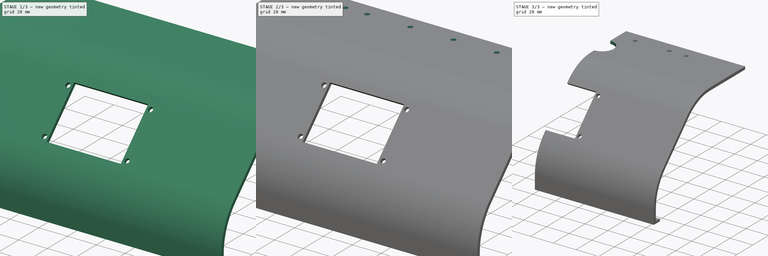
[diagram: build sequence overview — one tinted view per stage of 3, left to right]
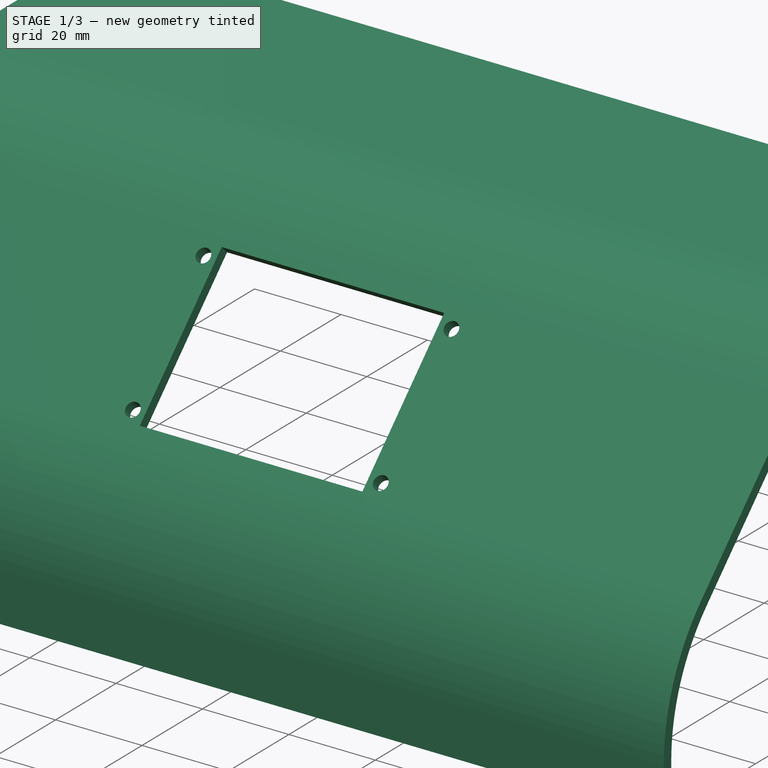
[diagram: stage 1 of 3 — iso view after this stage's code; geometry added in this stage tinted green]
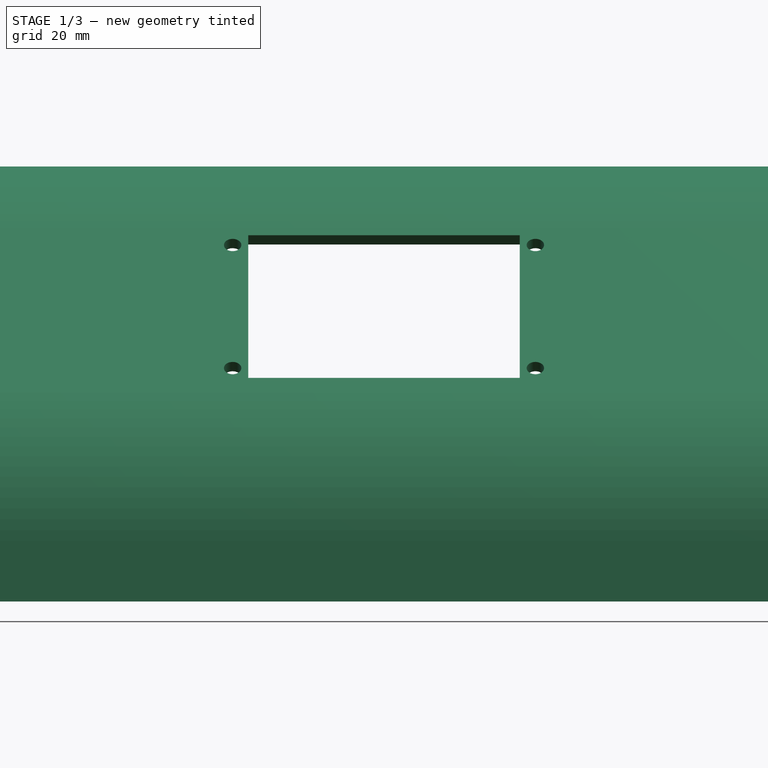
[diagram: stage 1 of 3 — front view after this stage's code; geometry added in this stage tinted green]
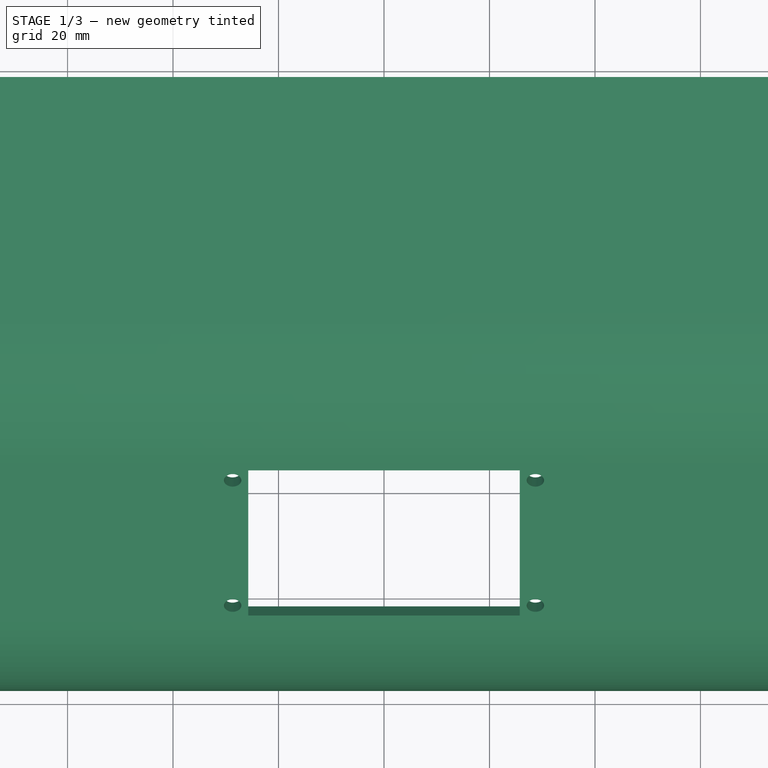
[diagram: stage 1 of 3 — top view after this stage's code; geometry added in this stage tinted green]
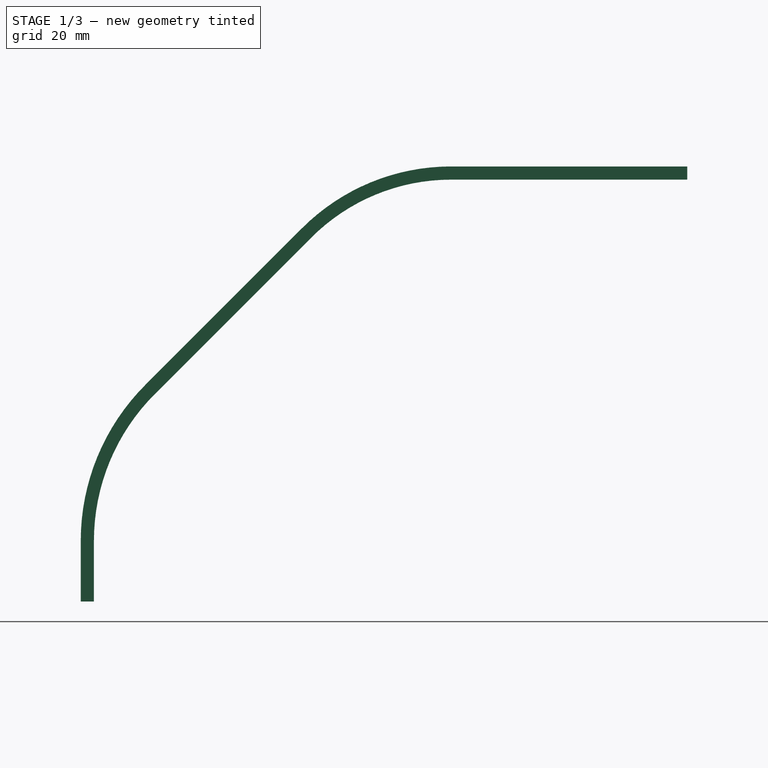
[diagram: stage 1 of 3 — right view after this stage's code; geometry added in this stage tinted green]
FCSTD DOCUMENT  (FreeCAD 1.0R39109 (Git))
Label: screen_support_h2
License: All rights reserved
LicenseURL: https://en.wikipedia.org/wiki/All_rights_reserved
objects: Sketcher::SketchObject×7, PartDesign::Pocket×4, PartDesign::Pad×2, PartDesign::Fillet×1, PartDesign::Body×1
note: 36 computed .brp shape members not serialized (recipe doc carries the construction recipe); baked Part::Feature solids carry a one-line shape summary decoded from their .brp

FEATURE [Sketcher::SketchObject] Sketch
  ArcFitTolerance = 1e-06
  AttachmentSupport = -> [YZ_Plane]
  FullyConstrained = true
  MakeInternals = false
  MapMode = 5
  Placement = pos=(0,0,0) rot=(0.57735,0.57735,0.57735;2.0944rad)
  sketch-geometry (14):
    g0: LineSegment StartX=12.7368 StartY=82.5 StartZ=0 EndX=57.5008 EndY=82.5 EndZ=0
    g1: LineSegment StartX=-15.5475 StartY=70.7843 StartZ=0 EndX=-45.246 EndY=41.0858 EndZ=0
    g2: ArcOfCircle CenterX=-15.6602 CenterY=11.5 CenterZ=0 NormalX=0 NormalY=0 NormalZ=1 AngleXU=0 Radius=41.8406 StartAngle=2.35619 EndAngle=3.14159
    g3: LineSegment StartX=-57.5008 StartY=11.5 StartZ=0 EndX=-57.5008 EndY=0 EndZ=0
    g4: ArcOfCircle CenterX=12.7368 CenterY=42.5 CenterZ=0 NormalX=0 NormalY=0 NormalZ=1 AngleXU=0 Radius=40 StartAngle=1.5708 EndAngle=2.35619
    g5: LineSegment [constr] StartX=-57.5008 StartY=0 StartZ=0 EndX=57.5008 EndY=0 EndZ=0
    g6: GeomPoint [constr] X=0 Y=0 Z=0
    g7: LineSegment StartX=57.5008 StartY=82.5 StartZ=0 EndX=57.5008 EndY=80 EndZ=0
    g8: LineSegment StartX=57.5008 StartY=80 StartZ=0 EndX=12.7368 EndY=80 EndZ=0
    g9: ArcOfCircle CenterX=12.7368 CenterY=42.5 CenterZ=0 NormalX=0 NormalY=0 NormalZ=1 AngleXU=0 Radius=37.5 StartAngle=1.5708 EndAngle=2.35619
    g10: LineSegment StartX=-13.7797 StartY=69.0165 StartZ=0 EndX=-43.4782 EndY=39.318 EndZ=0
    g11: ArcOfCircle CenterX=-15.6602 CenterY=11.5 CenterZ=0 NormalX=0 NormalY=0 NormalZ=1 AngleXU=0 Radius=39.3406 StartAngle=2.35619 EndAngle=3.14159
    g12: LineSegment StartX=-55.0008 StartY=11.5 StartZ=0 EndX=-55.0008 EndY=0 EndZ=0
    g13: LineSegment StartX=-55.0008 StartY=0 StartZ=0 EndX=-57.5008 EndY=0 EndZ=0
  constraints (34):
    c: Tangent(g1,g2) = -1.5708
    c: Tangent(g2,g3) = -1.5708
    c: Vertical(g3)
    c: Horizontal(g0)
    c: Tangent(g4,g1) = -1.5708
    c: Tangent(g4,g0) = 1.5708
    c: Distance(g1) = 42
    c: Angle(g1) = -2.35619
    c: DistanceX(g0,g0) = 44.764
    c: Radius(g4) = 40
    c: Radius(g2) = 41.8406
    c: PointOnObject(g3,g-1)
    c: DistanceY(g-1,g0) = 82.5
    c: Coincident(g5,g3)
    c: Symmetric(g5,g5,g6)
    c: Coincident(g6,g-1)
    c: Vertical(g5,g0)
    c: Coincident(g0,g7)
    c: Coincident(g7,g8)
    c: Horizontal(g8)
    c: Tangent(g8,g9) = -1.5708
    c: Tangent(g9,g10) = -1.5708
    c: Tangent(g10,g11) = -1.5708
    c: Tangent(g11,g12) = -1.5708
    c: Coincident(g12,g13)
    c: Coincident(g13,g3)
    c: Horizontal(g13)
    c: DistanceY(g7,g7) = 2.5
    c: Vertical(g7)
    c: Vertical(g8,g0)
    c: Horizontal(g11,g2)
    c: DistanceX(g13,g13) = 2.5
    c: Parallel(g10,g1)
    c: Coincident(g11,g2)
FEATURE [PartDesign::Pad] Pad  label="BasePad"
  Direction = (1,0,0)
  Length = 105
  Length2 = 105
  Placement = pos=(0,0,0) rot=(1,1,1;2.0944rad)
  Profile = -> Sketch
  ReferenceAxis = -> Sketch [N_Axis]
  Refine = true
  Suppressed = false
  Type = 4
FEATURE [Sketcher::SketchObject] Sketch001
  ArcFitTolerance = 1e-06
  AttachmentSupport = -> [Pad]
  ExternalGeometry = -> [Pad]
  FullyConstrained = true
  MakeInternals = false
  MapMode = 5
  Placement = pos=(-9.8e-15,-43.1659,43.1659) rot=(0.357407,0.357407,-0.862856;1.71777rad)
  sketch-geometry (18):
    g0: LineSegment StartX=-37.1833 StartY=25.75 StartZ=0 EndX=-37.1833 EndY=-25.75 EndZ=0
    g1: LineSegment StartX=-37.1833 StartY=-25.75 StartZ=0 EndX=1.06669 EndY=-25.75 EndZ=0
    g2: LineSegment StartX=1.06669 StartY=-25.75 StartZ=0 EndX=1.06669 EndY=25.75 EndZ=0
    g3: LineSegment StartX=1.06669 StartY=25.75 StartZ=0 EndX=-37.1833 EndY=25.75 EndZ=0
    g4: GeomPoint [constr] X=-18.0583 Y=-7.9e-15 Z=0
    g5: LineSegment [constr] StartX=-39.0583 StartY=-1.8e-14 StartZ=0 EndX=2.94169 EndY=2.2e-15 EndZ=0
    g6: GeomPoint [constr] X=-18.0583 Y=-7.9e-15 Z=0
    g7: Circle CenterX=-34.5583 CenterY=28.7 CenterZ=0 NormalX=0 NormalY=0 NormalZ=1 AngleXU=0 Radius=1.65
    g8: Circle CenterX=-1.55831 CenterY=28.7 CenterZ=0 NormalX=0 NormalY=0 NormalZ=1 AngleXU=0 Radius=1.65
    g9: GeomPoint [constr] X=-18.0583 Y=25.75 Z=0
    g10: LineSegment [constr] StartX=-34.5583 StartY=28.7 StartZ=0 EndX=-1.55831 EndY=28.7 EndZ=0
    g11: GeomPoint [constr] X=-18.0583 Y=28.7 Z=0
    g12: Circle CenterX=-34.5583 CenterY=-28.7 CenterZ=0 NormalX=0 NormalY=0 NormalZ=1 AngleXU=0 Radius=1.65
    g13: Circle CenterX=-1.55831 CenterY=-28.7 CenterZ=0 NormalX=0 NormalY=0 NormalZ=1 AngleXU=0 Radius=1.65
    g14: LineSegment [constr] StartX=-34.5583 StartY=-28.7 StartZ=0 EndX=-1.55831 EndY=-28.7 EndZ=0
    g15: GeomPoint [constr] X=-18.0583 Y=-28.7 Z=0
    g16: LineSegment [constr] StartX=-18.0583 StartY=28.7 StartZ=0 EndX=-18.0583 EndY=-28.7 EndZ=0
    g17: GeomPoint [constr] X=-18.0583 Y=-7.9e-15 Z=0
  constraints (35):
    c: Coincident(g0,g1)
    c: Coincident(g1,g2)
    c: Coincident(g2,g3)
    c: Coincident(g3,g0)
    c: Vertical(g0)
    c: Vertical(g2)
    c: Horizontal(g1)
    c: Horizontal(g3)
    c: Symmetric(g2,g0,g4)
    c: DistanceX(g3,g3) = 38.25
    c: DistanceY(g0,g0) = 51.5
    c: Symmetric(g-3,g-3,g5)
    c: Symmetric(g-4,g-4,g5)
    c: Symmetric(g5,g5,g6)
    c: Coincident(g6,g4)
    c: Equal(g7,g8)
    c: Radius(g8) = 1.65
    c: DistanceX(g7,g8) = 33
    c: Symmetric(g3,g3,g9)
    c: Coincident(g10,g7)
    c: Coincident(g10,g8)
    c: Horizontal(g10)
    c: Symmetric(g10,g10,g11)
    c: Vertical(g11,g9)
    c: Equal(g12,g13)
    c: Radius(g13) = 1.65
    c: Coincident(g14,g12)
    c: Coincident(g14,g13)
    c: Symmetric(g14,g14,g15)
    c: DistanceY(g12,g7) = 57.4
    c: Coincident(g16,g11)
    c: Coincident(g16,g15)
    c: Symmetric(g16,g16,g17)
    c: Coincident(g17,g4)
    c: Symmetric(g13,g7,g4)
FEATURE [PartDesign::Pocket] Pocket  label="ScreenPocket"
  BaseFeature = -> Pad
  Direction = (1e-16,0.707107,-0.707107)
  Length = 5
  Length2 = 5
  Placement = pos=(0,0,0) rot=(1,1,1;2.0944rad)
  Profile = -> Sketch001
  ReferenceAxis = -> Sketch001 [N_Axis]
  Refine = true
  Suppressed = false
  Type = 1
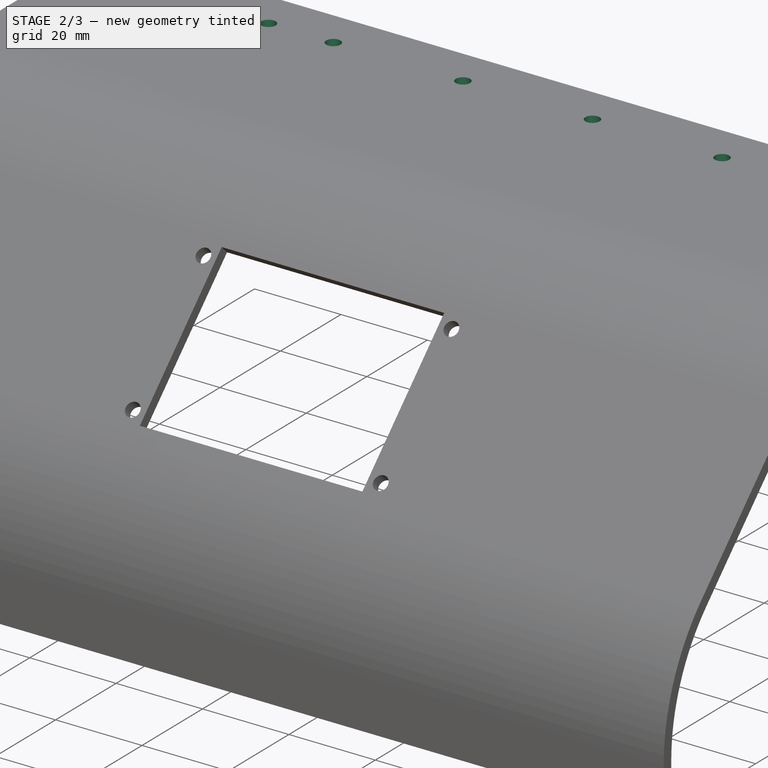
[diagram: stage 2 of 3 — iso view after this stage's code; geometry added in this stage tinted green]
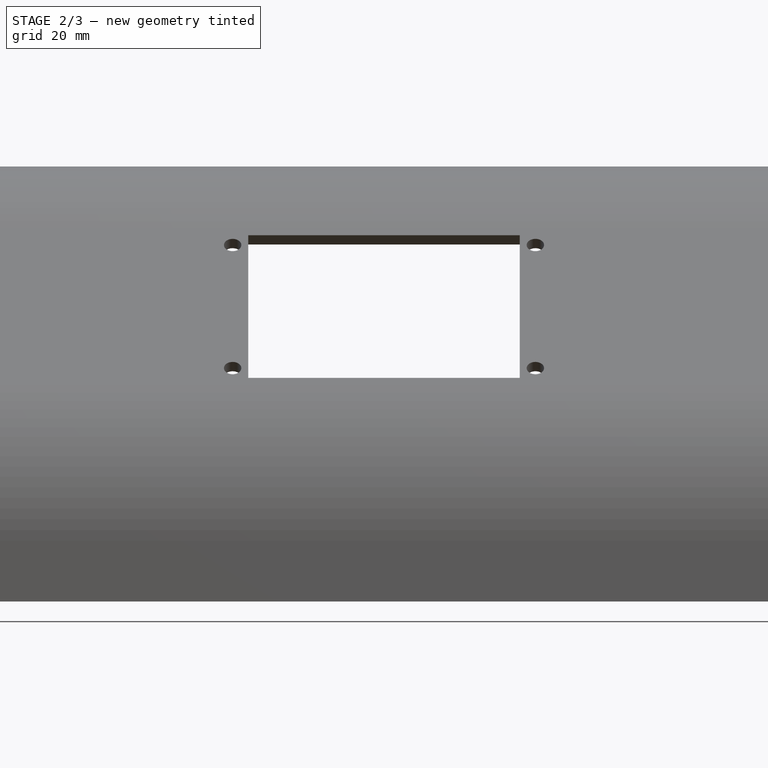
[diagram: stage 2 of 3 — front view after this stage's code; geometry added in this stage tinted green]
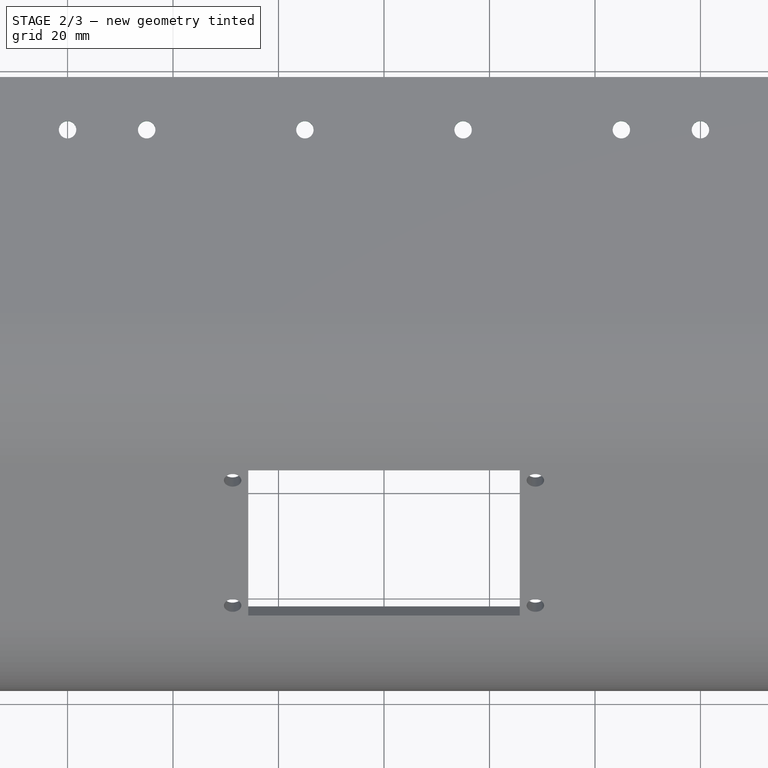
[diagram: stage 2 of 3 — top view after this stage's code; geometry added in this stage tinted green]
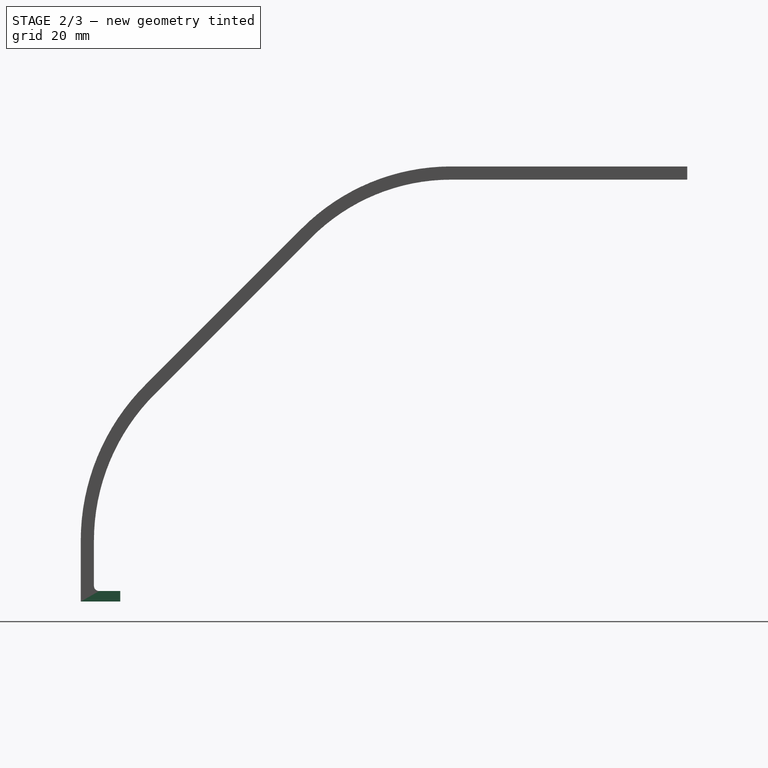
[diagram: stage 2 of 3 — right view after this stage's code; geometry added in this stage tinted green]
FEATURE [Sketcher::SketchObject] Sketch002
  ArcFitTolerance = 1e-06
  AttachmentSupport = -> [Pocket]
  FullyConstrained = true
  MakeInternals = false
  MapMode = 5
  Placement = pos=(0,1.82e-14,82.5) rot=(0,0,-1;1.5708rad)
FEATURE [Sketcher::SketchObject] Sketch003
  ArcFitTolerance = 1e-06
  AttachmentSupport = -> [Pocket]
  ExternalGeometry = -> [Pocket]
  FullyConstrained = true
  MakeInternals = false
  MapMode = 5
  Placement = pos=(0,1.82e-14,82.5) rot=(0,0,-1;1.5708rad)
  sketch-geometry (11):
    g0: Circle CenterX=-47.5008 CenterY=15 CenterZ=0 NormalX=0 NormalY=0 NormalZ=1 AngleXU=0 Radius=1.65
    g1: Circle CenterX=-47.5008 CenterY=45 CenterZ=0 NormalX=0 NormalY=0 NormalZ=1 AngleXU=0 Radius=1.65
    g2: Circle CenterX=-47.5008 CenterY=-15 CenterZ=0 NormalX=0 NormalY=0 NormalZ=1 AngleXU=0 Radius=1.65
    g3: Circle CenterX=-47.5008 CenterY=-45 CenterZ=0 NormalX=0 NormalY=0 NormalZ=1 AngleXU=0 Radius=1.65
    g4: LineSegment [constr] StartX=-47.5008 StartY=-45 StartZ=0 EndX=-47.5008 EndY=-15 EndZ=0
    g5: LineSegment [constr] StartX=-47.5008 StartY=-15 StartZ=0 EndX=-47.5008 EndY=15 EndZ=0
    g6: LineSegment [constr] StartX=-47.5008 StartY=15 StartZ=0 EndX=-47.5008 EndY=45 EndZ=0
    g7: GeomPoint [constr] X=-47.5008 Y=0 Z=0
    g8: Circle CenterX=-47.5008 CenterY=60 CenterZ=0 NormalX=0 NormalY=0 NormalZ=1 AngleXU=0 Radius=1.65
    g9: Circle CenterX=-47.5008 CenterY=-60 CenterZ=0 NormalX=0 NormalY=0 NormalZ=1 AngleXU=0 Radius=1.65
    g10: LineSegment [constr] StartX=-47.5008 StartY=-45 StartZ=0 EndX=-47.5008 EndY=-60 EndZ=0
  constraints (26):
    c: Coincident(g4,g3)
    c: Coincident(g4,g2)
    c: Vertical(g4)
    c: Coincident(g4,g5)
    c: Coincident(g5,g0)
    c: Coincident(g5,g6)
    c: Coincident(g6,g1)
    c: Vertical(g6)
    c: Symmetric(g5,g5,g7)
    c: PointOnObject(g7,g-1)
    c: Equal(g4,g6)
    c: Vertical(g5)
    c: DistanceY(g5,g5) = 30
    c: DistanceY(g6,g6) = 30
    c: Equal(g1,g0)
    c: Equal(g0,g2)
    c: Equal(g2,g3)
    c: Radius(g3) = 1.65
    c: DistanceX(g-3,g7) = 10
    c: Vertical(g9,g3)
    c: Coincident(g10,g3)
    c: Coincident(g10,g9)
    c: Equal(g9,g3)
    c: DistanceY(g10,g10) = 15
    c: Symmetric(g8,g9,g-1)
    c: Equal(g8,g1)
FEATURE [PartDesign::Pocket] Pocket001  label="ScrewPockets"
  BaseFeature = -> Pocket
  Direction = (0,0,-1)
  Length = 5
  Length2 = 5
  Placement = pos=(0,0,0) rot=(1,1,1;2.0944rad)
  Profile = -> Sketch003
  ReferenceAxis = -> Sketch003 [N_Axis]
  Refine = true
  Suppressed = false
  Type = 0
FEATURE [Sketcher::SketchObject] Sketch004
  ArcFitTolerance = 1e-06
  AttachmentSupport = -> [Pocket001]
  ExternalGeometry = -> [Pocket001]
  FullyConstrained = true
  MakeInternals = false
  MapMode = 5
  Placement = pos=(-1.21e-14,-55.0008,-3.41e-14) rot=(0.57735,0.57735,0.57735;4.18879rad)
  sketch-geometry (4):
    g0: LineSegment StartX=3.38e-14 StartY=105 StartZ=0 EndX=3.38e-14 EndY=-105 EndZ=0
    g1: LineSegment StartX=3.38e-14 StartY=-105 StartZ=0 EndX=2 EndY=-105 EndZ=0
    g2: LineSegment StartX=2 StartY=-105 StartZ=0 EndX=2 EndY=105 EndZ=0
    g3: LineSegment StartX=2 StartY=105 StartZ=0 EndX=3.38e-14 EndY=105 EndZ=0
  constraints (11):
    c: Coincident(g0,g1)
    c: Coincident(g1,g2)
    c: Coincident(g2,g3)
    c: Coincident(g3,g0)
    c: Vertical(g0)
    c: Vertical(g2)
    c: Horizontal(g1)
    c: Horizontal(g3)
    c: Coincident(g0,g-3)
    c: PointOnObject(g1,g-4)
    c: DistanceX(g1,g1) = 2
FEATURE [PartDesign::Pad] Pad001  label="ExtPad"
  BaseFeature = -> Pocket001
  Direction = (0,1,0)
  Length = 5
  Length2 = 10
  Placement = pos=(0,0,0) rot=(1,1,1;2.0944rad)
  Profile = -> Sketch004
  ReferenceAxis = -> Sketch004 [N_Axis]
  Refine = true
  Suppressed = false
  Type = 0
FEATURE [PartDesign::Fillet] Fillet  label="ReinforceExtFillet"
  Base = -> Pad001 [Edge72]
  BaseFeature = -> Pad001
  Placement = pos=(0,0,0) rot=(1,1,1;2.0944rad)
  Radius = 1
  Refine = true
  SupportTransform = false
  Suppressed = false
  UseAllEdges = false
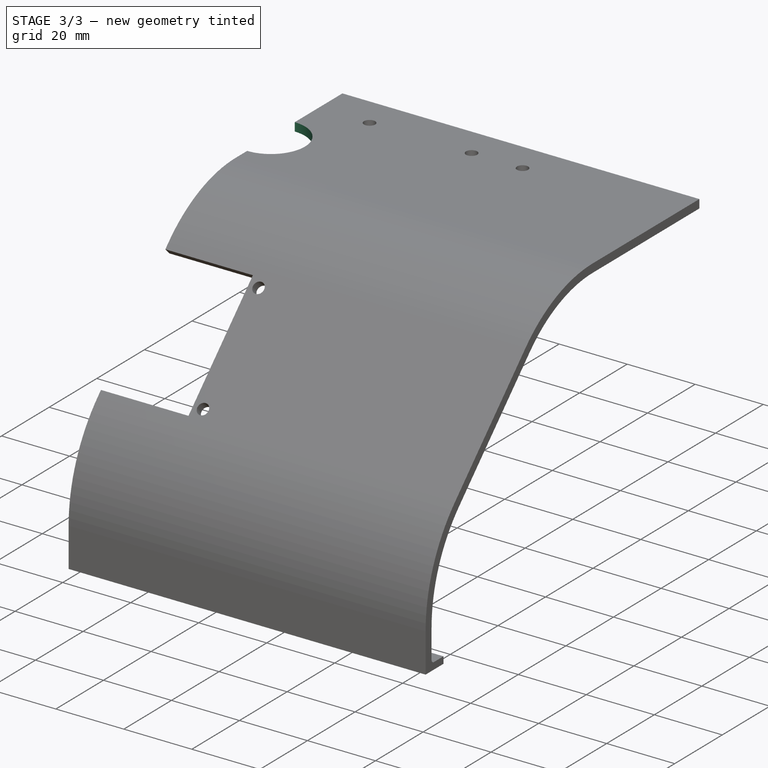
[diagram: stage 3 of 3 — iso view after this stage's code; geometry added in this stage tinted green]
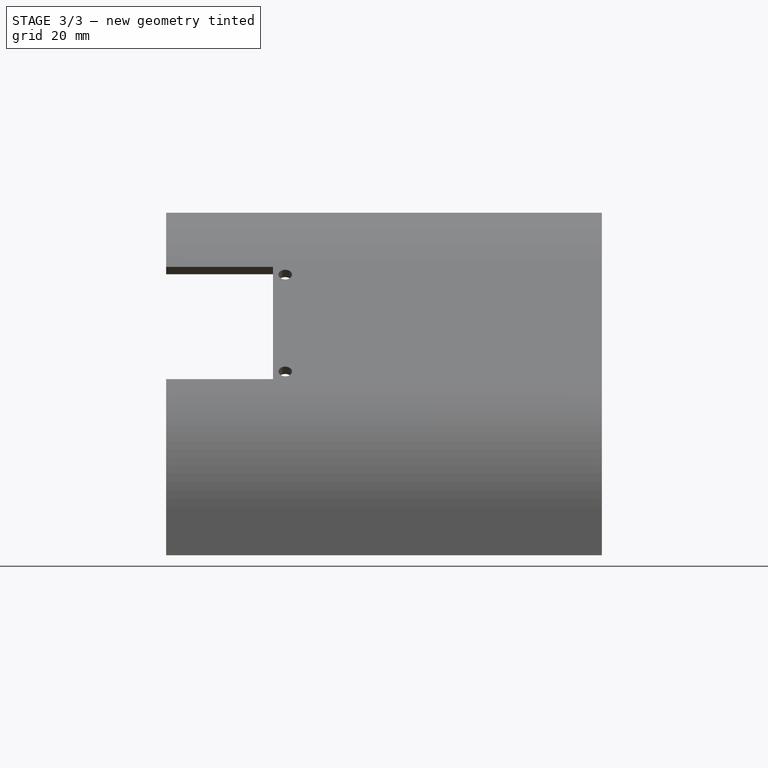
[diagram: stage 3 of 3 — front view after this stage's code; geometry added in this stage tinted green]
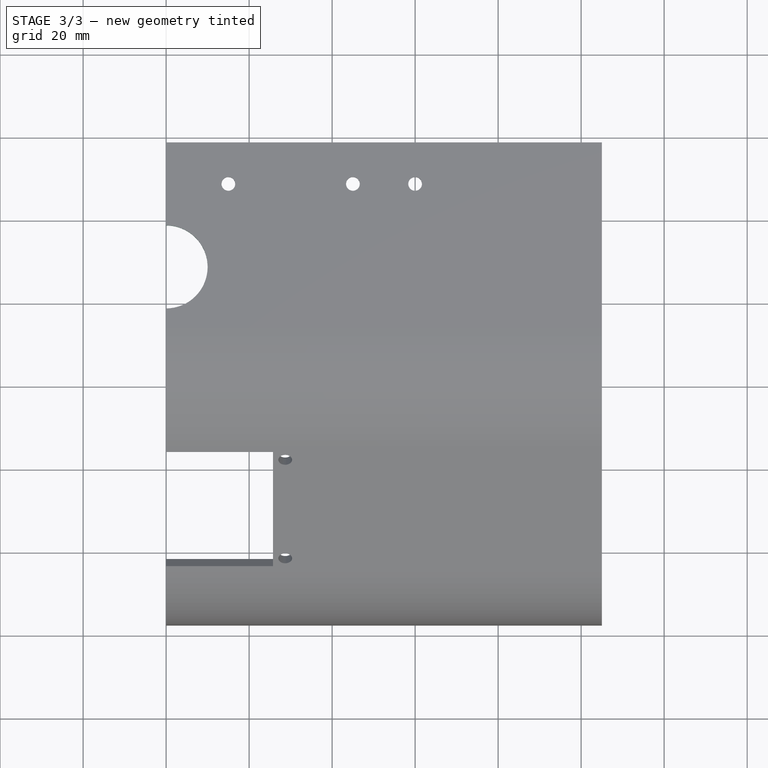
[diagram: stage 3 of 3 — top view after this stage's code; geometry added in this stage tinted green]
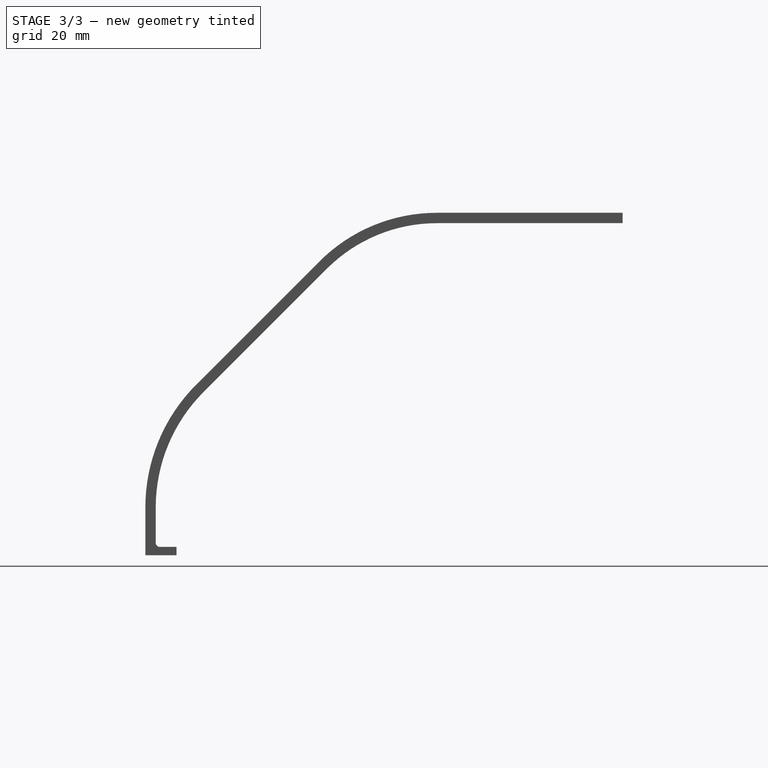
[diagram: stage 3 of 3 — right view after this stage's code; geometry added in this stage tinted green]
FEATURE [Sketcher::SketchObject] Sketch005
  ArcFitTolerance = 1e-06
  AttachmentSupport = -> [Fillet]
  ExternalGeometry = -> [Fillet]
  FullyConstrained = true
  MakeInternals = false
  MapMode = 5
  Placement = pos=(0,1.82e-14,82.5) rot=(0,0,-1;1.5708rad)
  sketch-geometry (1):
    g0: Circle CenterX=-27.5008 CenterY=0 CenterZ=0 NormalX=0 NormalY=0 NormalZ=1 AngleXU=0 Radius=10
  constraints (3):
    c: PointOnObject(g0,g-1)
    c: Radius(g0) = 10
    c: DistanceX(g-3,g0) = 30
FEATURE [PartDesign::Pocket] Pocket002  label="MicPocket"
  BaseFeature = -> Fillet
  Direction = (0,0,-1)
  Length = 5
  Length2 = 5
  Placement = pos=(0,0,0) rot=(1,1,1;2.0944rad)
  Profile = -> Sketch005
  ReferenceAxis = -> Sketch005 [N_Axis]
  Refine = true
  Suppressed = false
  Type = 0
FEATURE [Sketcher::SketchObject] Sketch006
  ArcFitTolerance = 1e-06
  AttachmentSupport = -> [XZ_Plane]
  FullyConstrained = true
  MakeInternals = false
  MapMode = 5
  Placement = pos=(0,0,0) rot=(1,0,0;1.5708rad)
  sketch-geometry (4):
    g0: LineSegment StartX=0 StartY=0 StartZ=0 EndX=0 EndY=90 EndZ=0
    g1: LineSegment StartX=0 StartY=90 StartZ=0 EndX=-110 EndY=90 EndZ=0
    g2: LineSegment StartX=-110 StartY=90 StartZ=0 EndX=-110 EndY=0 EndZ=0
    g3: LineSegment StartX=-110 StartY=0 StartZ=0 EndX=0 EndY=0 EndZ=0
  constraints (11):
    c: Coincident(g0,g1)
    c: Coincident(g1,g2)
    c: Coincident(g2,g3)
    c: Coincident(g3,g0)
    c: Vertical(g0)
    c: Vertical(g2)
    c: Horizontal(g1)
    c: Horizontal(g3)
    c: Coincident(g0,g-1)
    c: DistanceX(g3,g3) = 110
    c: DistanceY(g2,g2) = 90
FEATURE [PartDesign::Pocket] Pocket003
  BaseFeature = -> Pocket002
  Direction = (0,1,-2e-16)
  Length = 105
  Length2 = 77
  Placement = pos=(0,0,0) rot=(1,1,1;2.0944rad)
  Profile = -> Sketch006
  ReferenceAxis = -> Sketch006 [N_Axis]
  Refine = true
  Suppressed = false
  Type = 4
FEATURE [PartDesign::Body] Body  label="ScreenSupportH2"
  AllowCompound = false
  Group = -> [Sketch,Pad,Sketch001,Pocket,Sketch002,Sketch003,Pocket001,Sketch004,Pad001,Fillet,Sketch005,Pocket002,Sketch006,Pocket003]
  Origin = -> Origin
  Tip = -> Pocket003
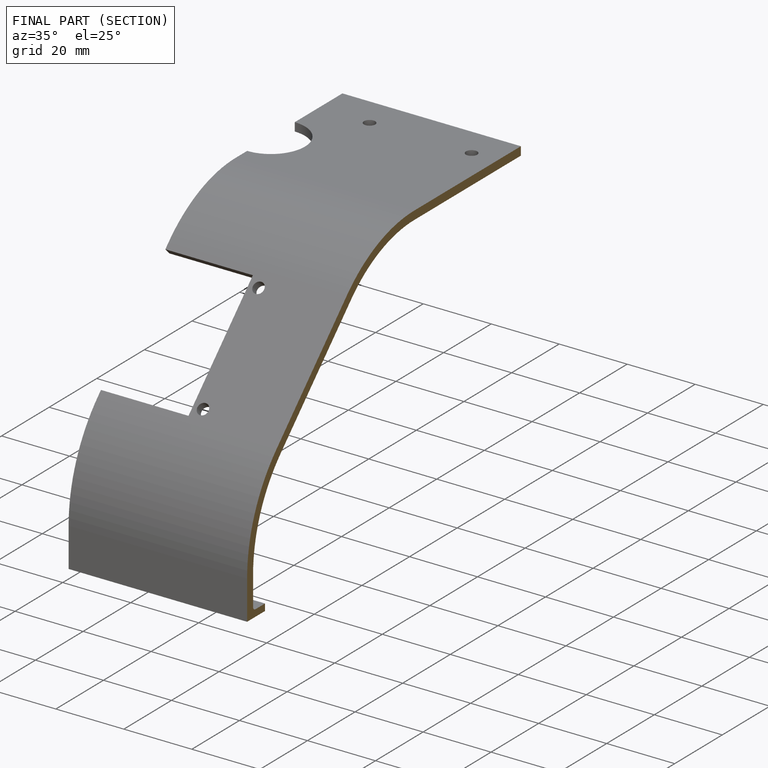
[diagram: finished part — half-section view (interior)]
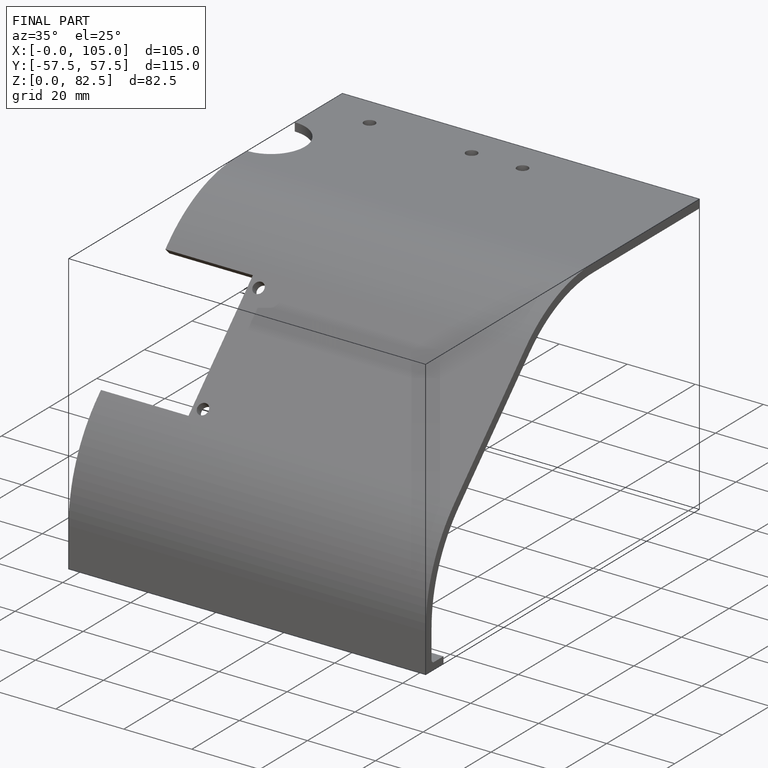
[diagram: finished part — iso view with bounding-box wireframe]
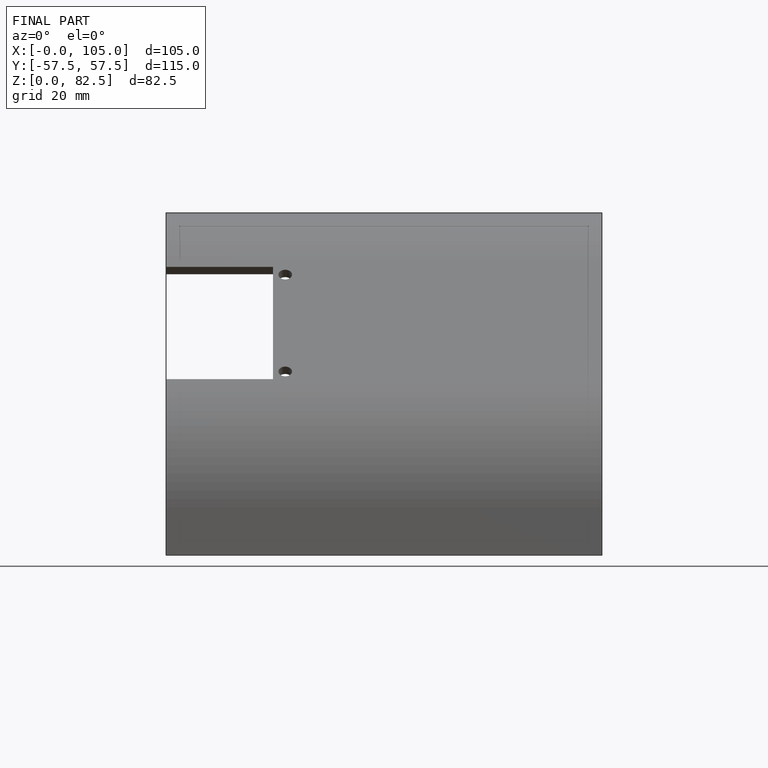
[diagram: finished part — front view with bounding-box wireframe]
